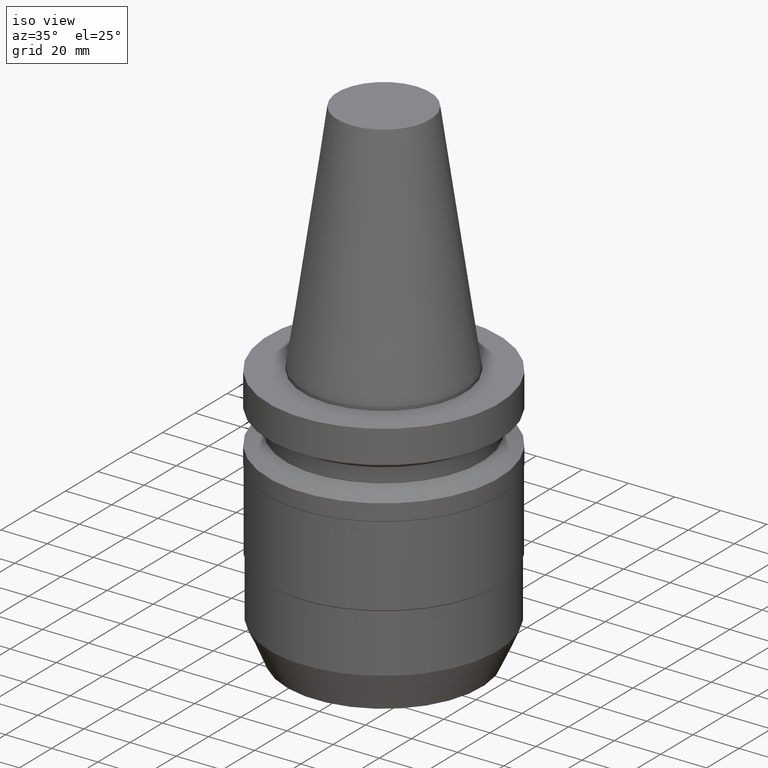
[diagram: clean part render]
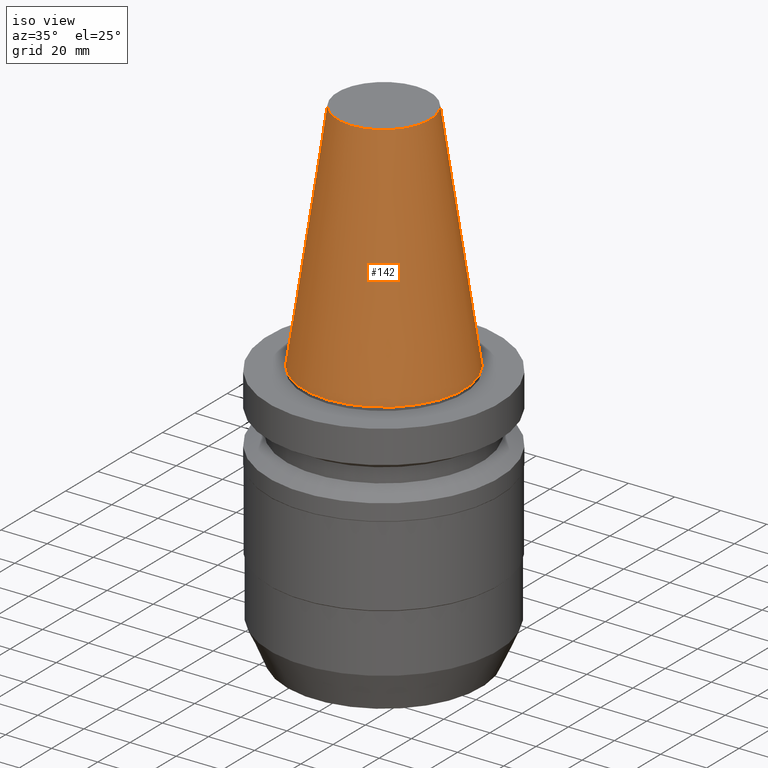
[diagram: same view with one face highlighted and labeled with its STEP entity id]
A machine part, iso view. The second image highlights one B-rep face of the part: STEP entity #142.
In plain terms, the highlighted conical surface has half-angle 8.297 deg.
Its self-contained STEP definition (entity closure, byte-faithful):
#70=EDGE_CURVE('Unnamed[1]',#180,#180,#181,.T.);
#135=EDGE_CURVE('Unnamed[1]',#280,#280,#281,.T.);
#142=ADVANCED_FACE('Unnamed[1]',(#290,#291),#292,.T.);
#180=VERTEX_POINT('',#325);
#181=CIRCLE('',#326,20.0791666651884);
#280=VERTEX_POINT('',#450);
#281=CIRCLE('',#451,34.925);
#290=FACE_BOUND('',#463,.T.);
#291=FACE_BOUND('',#464,.T.);
#292=CONICAL_SURFACE('',#465,27.5020833325942,0.144812498253157);
#325=CARTESIAN_POINT('',(-6.23345220766003E-015,20.0791666651884,101.8));
#326=AXIS2_PLACEMENT_3D('',#491,#492,#493);
#450=CARTESIAN_POINT('',(-4.30483861169435E-031,34.925,4.27707894602213E-015));
#451=AXIS2_PLACEMENT_3D('',#601,#602,#603);
#463=EDGE_LOOP('',(#611));
#464=EDGE_LOOP('',(#612));
#465=AXIS2_PLACEMENT_3D('',#613,#614,#615);
#491=CARTESIAN_POINT('',(-6.23345220766003E-015,-1.24669044153201E-014,101.8));
#492=DIRECTION('',(6.12323399573677E-017,1.22464679914735E-016,-1.0));
#493=DIRECTION('',(-1.23259516440783E-032,1.0,1.22464679914735E-016));
#601=CARTESIAN_POINT('',(0.0,0.0,0.0));
#602=DIRECTION('',(6.12323399573677E-017,1.22464679914735E-016,-1.0));
#603=DIRECTION('',(-1.23259516440783E-032,1.0,1.22464679914735E-016));
#611=ORIENTED_EDGE('',*,*,#135,.F.);
#612=ORIENTED_EDGE('',*,*,#70,.T.);
#613=CARTESIAN_POINT('',(-3.11672610383001E-015,-6.23345220766003E-015,50.9));
#614=DIRECTION('',(6.12323399573677E-017,1.22464679914735E-016,-1.0));
#615=DIRECTION('',(-1.23259516440783E-032,1.0,1.22464679914735E-016));